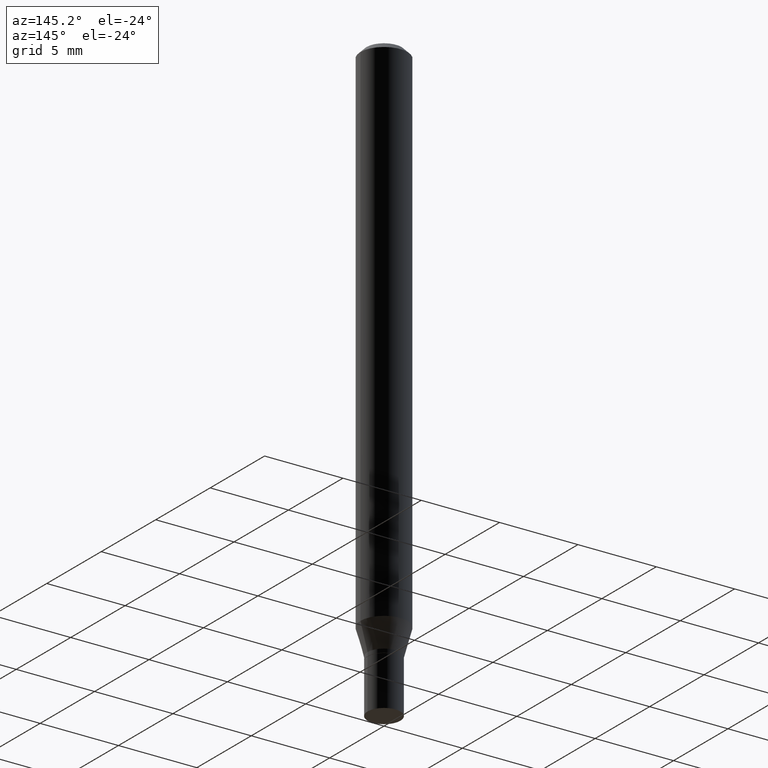
[diagram: clean part render]
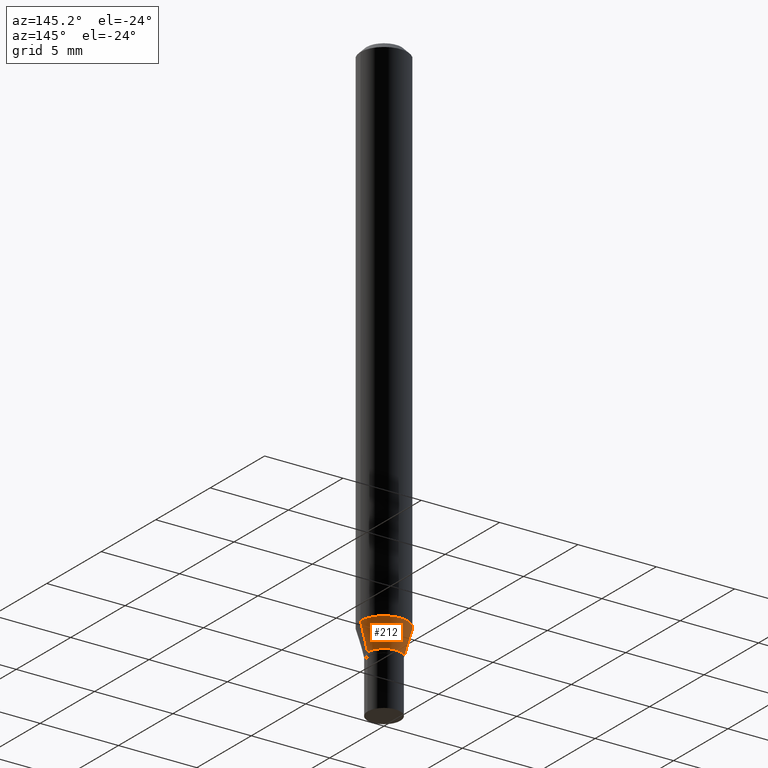
[diagram: same view with one face highlighted and labeled with its STEP entity id]
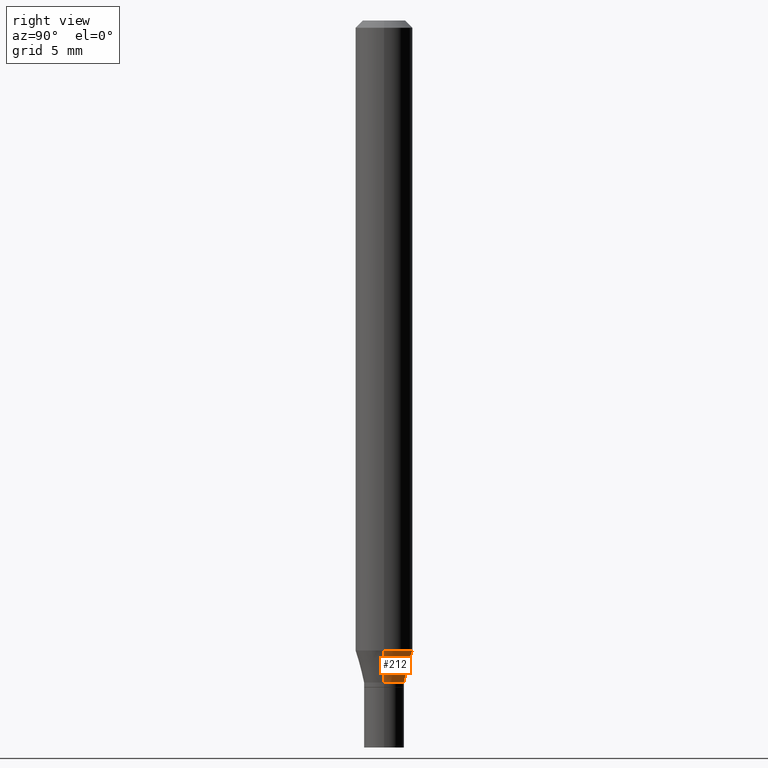
[diagram: same view with one face highlighted and labeled with its STEP entity id]
A machine part, auxiliary view. The second image highlights one B-rep face of the part: STEP entity #212.
A second angle (right view) of the same face is appended — the face is thin or edge-on in the first view.
In plain terms, the highlighted conical surface has half-angle 15 deg.
Its self-contained STEP definition (entity closure, byte-faithful):
#3 = LINE ( 'NONE', #366, #442 ) ;
#5 = CIRCLE ( 'NONE', #372, 0.04134999999999992154 ) ;
#22 = CARTESIAN_POINT ( 'NONE',  ( 0.05904999999999999832, -4.950720479063956605E-15, -1.299842700706030918 ) ) ;
#34 = VERTEX_POINT ( 'NONE', #152 ) ;
#38 = CIRCLE ( 'NONE', #93, 0.05904999999999999832 ) ;
#39 = VERTEX_POINT ( 'NONE', #77 ) ;
#53 = DIRECTION ( 'NONE',  ( -2.445468806185136597E-29, 3.491481338843145583E-15, 1.000000000000000000 ) ) ;
#62 = VERTEX_POINT ( 'NONE', #261 ) ;
#71 = AXIS2_PLACEMENT_3D ( 'NONE', #274, #313, #268 ) ;
#77 = CARTESIAN_POINT ( 'NONE',  ( -0.05904999999999999832, -4.118801047480243769E-15, -1.299842700706030918 ) ) ;
#81 = DIRECTION ( 'NONE',  ( 1.000000000000000000, -6.982962677686273021E-15, 0.000000000000000000 ) ) ;
#87 = VECTOR ( 'NONE', #169, 39.37007874015748854 ) ;
#89 = EDGE_CURVE ( 'NONE', #34, #309, #3, .T. ) ;
#93 = AXIS2_PLACEMENT_3D ( 'NONE', #330, #361, #81 ) ;
#94 = DIRECTION ( 'NONE',  ( 1.000000000000000000, -6.982962677686262766E-15, 0.000000000000000000 ) ) ;
#101 = CARTESIAN_POINT ( 'NONE',  ( -0.04134999999999992154, -4.475204939489051364E-15, -1.365900000000000114 ) ) ;
#110 = EDGE_CURVE ( 'NONE', #309, #39, #38, .T. ) ;
#152 = CARTESIAN_POINT ( 'NONE',  ( 0.04134999999999992154, -5.057759867448178932E-15, -1.365900000000000114 ) ) ;
#169 = DIRECTION ( 'NONE',  ( -0.2588190451025217387, 5.211531920934551042E-15, 0.9659258262890679791 ) ) ;
#212 = ADVANCED_FACE ( 'NONE', ( #235 ), #374, .T. ) ;
#214 = ORIENTED_EDGE ( 'NONE', *, *, #110, .F. ) ;
#227 = EDGE_CURVE ( 'NONE', #34, #62, #5, .T. ) ;
#235 = FACE_OUTER_BOUND ( 'NONE', #422, .T. ) ;
#259 = DIRECTION ( 'NONE',  ( 0.2588190451025217387, 1.565188264969619207E-15, 0.9659258262890679791 ) ) ;
#261 = CARTESIAN_POINT ( 'NONE',  ( -0.04134999999999992154, -4.297002993484647567E-15, -1.365900000000000114 ) ) ;
#268 = DIRECTION ( 'NONE',  ( 1.000000000000000000, -6.982962677686262766E-15, 0.000000000000000000 ) ) ;
#274 = CARTESIAN_POINT ( 'NONE',  ( 3.340265842368278094E-29, -4.769014360725852776E-15, -1.365900000000000114 ) ) ;
#309 = VERTEX_POINT ( 'NONE', #22 ) ;
#313 = DIRECTION ( 'NONE',  ( -2.445468806185136597E-29, 3.491481338843145583E-15, 1.000000000000000000 ) ) ;
#317 = LINE ( 'NONE', #101, #87 ) ;
#330 = CARTESIAN_POINT ( 'NONE',  ( 3.178724777524041310E-29, -4.538376532946583262E-15, -1.299842700706030918 ) ) ;
#344 = CARTESIAN_POINT ( 'NONE',  ( 3.340265842368278094E-29, -4.769014360725852776E-15, -1.365900000000000114 ) ) ;
#359 = EDGE_CURVE ( 'NONE', #62, #39, #317, .T. ) ;
#361 = DIRECTION ( 'NONE',  ( -2.445468806185136597E-29, 3.491481338843145583E-15, 1.000000000000000000 ) ) ;
#366 = CARTESIAN_POINT ( 'NONE',  ( 0.04134999999999992154, -5.057759867448178932E-15, -1.365900000000000114 ) ) ;
#372 = AXIS2_PLACEMENT_3D ( 'NONE', #344, #53, #94 ) ;
#374 = CONICAL_SURFACE ( 'NONE', #71, 0.04134999999999992154, 0.2617993877991504625 ) ;
#411 = ORIENTED_EDGE ( 'NONE', *, *, #89, .F. ) ;
#422 = EDGE_LOOP ( 'NONE', ( #430, #462, #214, #411 ) ) ;
#430 = ORIENTED_EDGE ( 'NONE', *, *, #227, .T. ) ;
#442 = VECTOR ( 'NONE', #259, 39.37007874015748854 ) ;
#462 = ORIENTED_EDGE ( 'NONE', *, *, #359, .T. ) ;